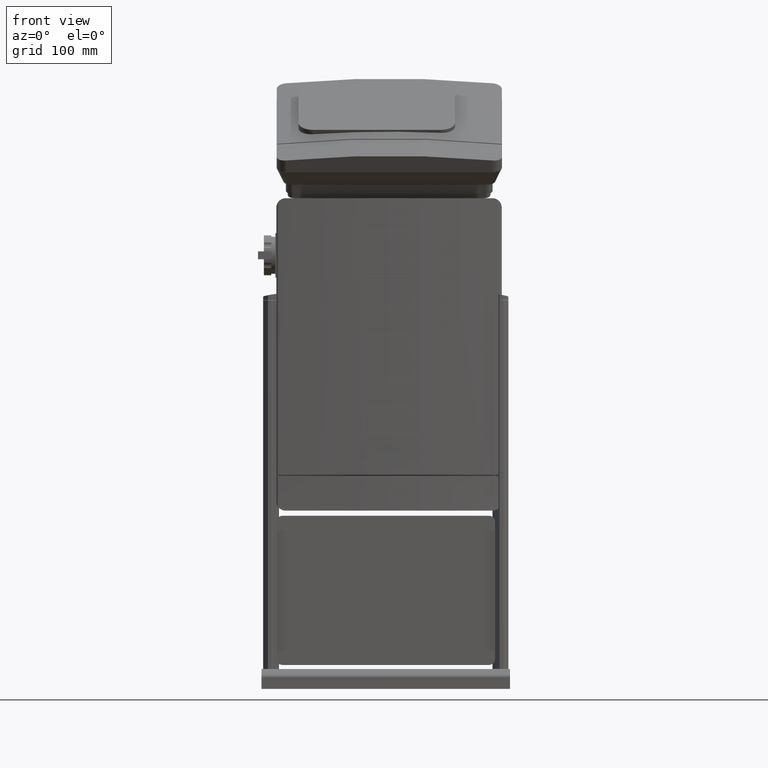
[diagram: clean part render]
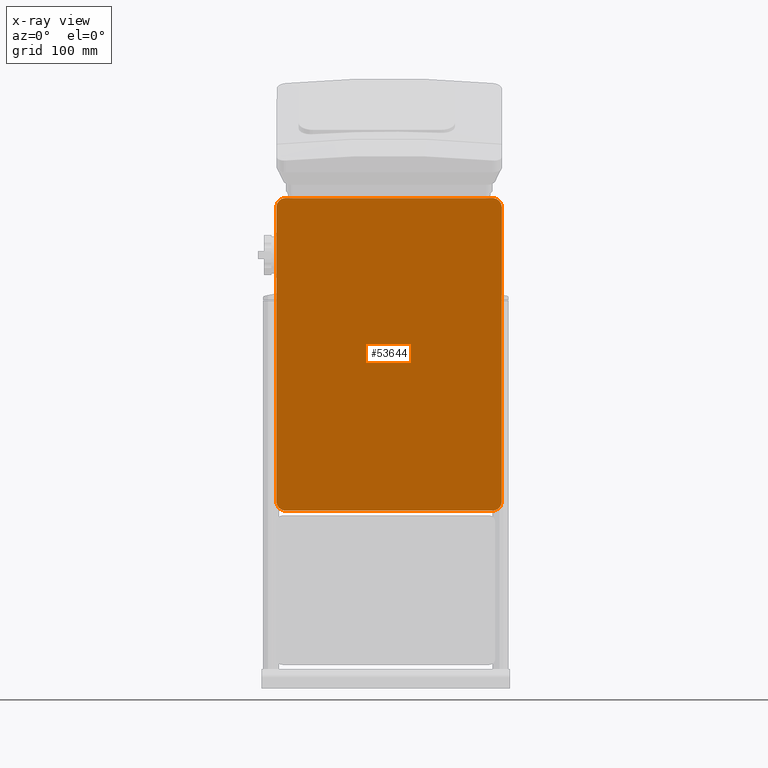
[diagram: x-ray — body ghosted, one internal face saturated and labeled with its STEP entity id]
A machine part, front view, then the same camera in x-ray: the body is ghosted and one INTERNAL B-rep face — a face not visible from any outside direction — is saturated and labeled: STEP entity #53644.
In plain terms, the highlighted planar face has unit normal (0, 1, 0).
Its self-contained STEP definition (entity closure, byte-faithful):
#53569=CARTESIAN_POINT('',(-0.001163856517508,-327.50036563467495,473.55169542980531));
#53570=DIRECTION('',(0.0,1.0,0.0));
#53571=DIRECTION('',(-1.0,0.0,0.0));
#53572=AXIS2_PLACEMENT_3D('',#53569,#53570,#53571);
#53573=PLANE('',#53572);
#53574=CARTESIAN_POINT('',(155.99883614348249,-327.50036563467495,237.85169542980532));
#53575=VERTEX_POINT('',#53574);
#53576=CARTESIAN_POINT('',(-156.00116385651751,-327.50036563467495,237.85169542980532));
#53577=VERTEX_POINT('',#53576);
#53578=CARTESIAN_POINT('',(155.99883614348249,-327.50036563467495,237.85169542980532));
#53579=DIRECTION('',(-1.0,0.0,0.0));
#53580=VECTOR('',#53579,312.0);
#53581=LINE('',#53578,#53580);
#53582=EDGE_CURVE('',#53575,#53577,#53581,.T.);
#53583=ORIENTED_EDGE('',*,*,#53582,.F.);
#53584=CARTESIAN_POINT('',(169.99883614348249,-327.50036563467495,251.85169542980532));
#53585=VERTEX_POINT('',#53584);
#53586=CARTESIAN_POINT('',(155.99883614348249,-327.50036563467495,251.85169542980532));
#53587=DIRECTION('',(0.0,1.0,0.0));
#53588=DIRECTION('',(1.0,0.0,0.0));
#53589=AXIS2_PLACEMENT_3D('',#53586,#53587,#53588);
#53590=CIRCLE('',#53589,14.000000000000004);
#53591=EDGE_CURVE('',#53585,#53575,#53590,.T.);
#53592=ORIENTED_EDGE('',*,*,#53591,.F.);
#53593=CARTESIAN_POINT('',(169.99883614348272,-327.50036563467495,695.25169542980541));
#53594=VERTEX_POINT('',#53593);
#53595=CARTESIAN_POINT('',(169.99883614348272,-327.50036563467495,695.25169542980541));
#53596=DIRECTION('',(0.0,0.0,-1.0));
#53597=VECTOR('',#53596,443.40000000000009);
#53598=LINE('',#53595,#53597);
#53599=EDGE_CURVE('',#53594,#53585,#53598,.T.);
#53600=ORIENTED_EDGE('',*,*,#53599,.F.);
#53601=CARTESIAN_POINT('',(155.99883614348272,-327.50036563467495,709.25169542980518));
#53602=VERTEX_POINT('',#53601);
#53603=CARTESIAN_POINT('',(155.99883614348272,-327.50036563467495,695.25169542980541));
#53604=DIRECTION('',(0.0,1.0,0.0));
#53605=DIRECTION('',(0.0,0.0,1.0));
#53606=AXIS2_PLACEMENT_3D('',#53603,#53604,#53605);
#53607=CIRCLE('',#53606,13.999999999999799);
#53608=EDGE_CURVE('',#53602,#53594,#53607,.T.);
#53609=ORIENTED_EDGE('',*,*,#53608,.F.);
#53610=CARTESIAN_POINT('',(-156.00116385651728,-327.50036563467495,709.2516954298053));
#53611=VERTEX_POINT('',#53610);
#53612=CARTESIAN_POINT('',(-156.00116385651728,-327.50036563467495,709.2516954298053));
#53613=DIRECTION('',(1.0,0.0,0.0));
#53614=VECTOR('',#53613,311.99999999999994);
#53615=LINE('',#53612,#53614);
#53616=EDGE_CURVE('',#53611,#53602,#53615,.T.);
#53617=ORIENTED_EDGE('',*,*,#53616,.F.);
#53618=CARTESIAN_POINT('',(-170.00116385651728,-327.50036563467495,695.25169542980541));
#53619=VERTEX_POINT('',#53618);
#53620=CARTESIAN_POINT('',(-156.00116385651728,-327.50036563467495,695.25169542980541));
#53621=DIRECTION('',(0.0,1.0,0.0));
#53622=DIRECTION('',(-1.0,0.0,0.0));
#53623=AXIS2_PLACEMENT_3D('',#53620,#53621,#53622);
#53624=CIRCLE('',#53623,13.999999999999984);
#53625=EDGE_CURVE('',#53619,#53611,#53624,.T.);
#53626=ORIENTED_EDGE('',*,*,#53625,.F.);
#53627=CARTESIAN_POINT('',(-170.00116385651751,-327.50036563467495,251.85169542980532));
#53628=VERTEX_POINT('',#53627);
#53629=CARTESIAN_POINT('',(-170.00116385651751,-327.50036563467495,251.85169542980532));
#53630=DIRECTION('',(0.0,0.0,1.0));
#53631=VECTOR('',#53630,443.40000000000009);
#53632=LINE('',#53629,#53631);
#53633=EDGE_CURVE('',#53628,#53619,#53632,.T.);
#53634=ORIENTED_EDGE('',*,*,#53633,.F.);
#53635=CARTESIAN_POINT('',(-156.00116385651751,-327.50036563467495,251.85169542980532));
#53636=DIRECTION('',(0.0,1.0,0.0));
#53637=DIRECTION('',(0.0,0.0,-1.0));
#53638=AXIS2_PLACEMENT_3D('',#53635,#53636,#53637);
#53639=CIRCLE('',#53638,13.999999999999996);
#53640=EDGE_CURVE('',#53577,#53628,#53639,.T.);
#53641=ORIENTED_EDGE('',*,*,#53640,.F.);
#53642=EDGE_LOOP('',(#53583,#53592,#53600,#53609,#53617,#53626,#53634,#53641));
#53643=FACE_OUTER_BOUND('',#53642,.T.);
#53644=ADVANCED_FACE('',(#53643),#53573,.F.);